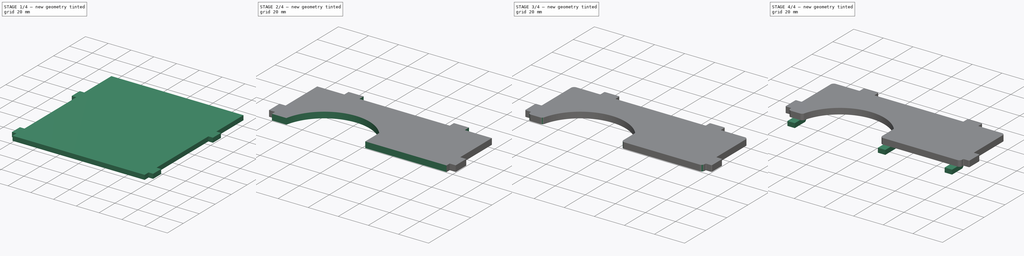
[diagram: build sequence overview — one tinted view per stage of 4, left to right]
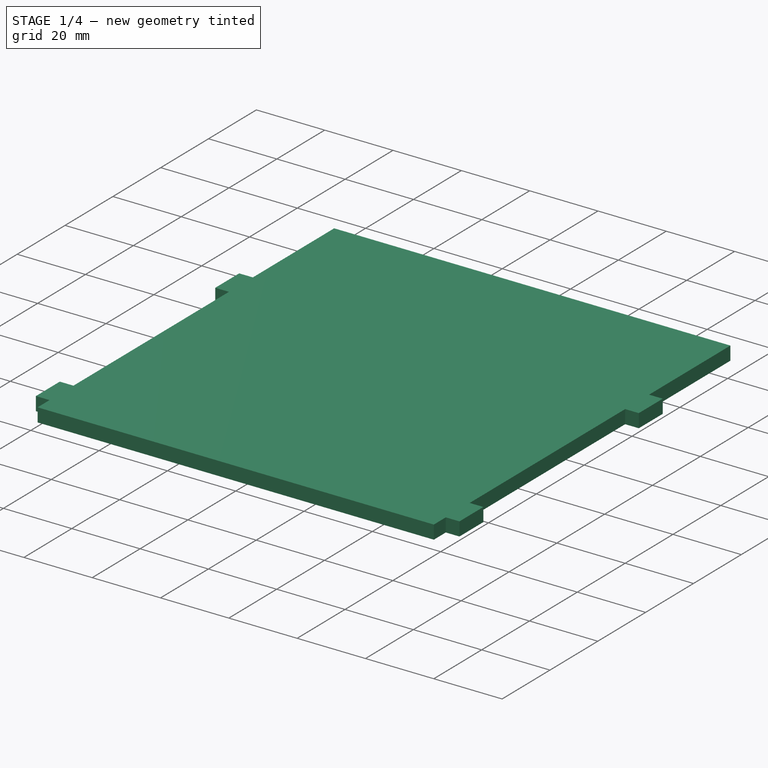
[diagram: stage 1 of 4 — iso view after this stage's code; geometry added in this stage tinted green]
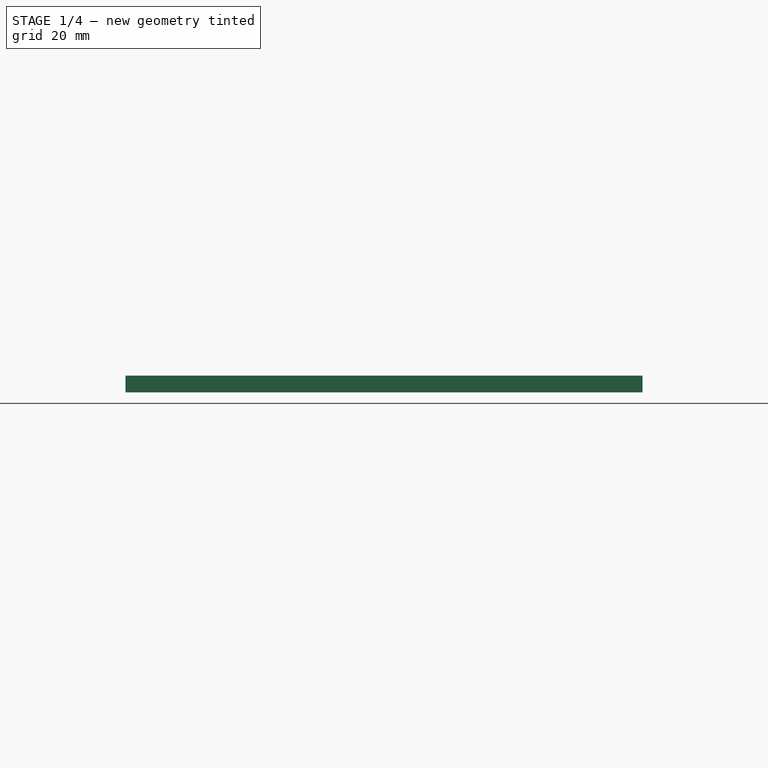
[diagram: stage 1 of 4 — front view after this stage's code; geometry added in this stage tinted green]
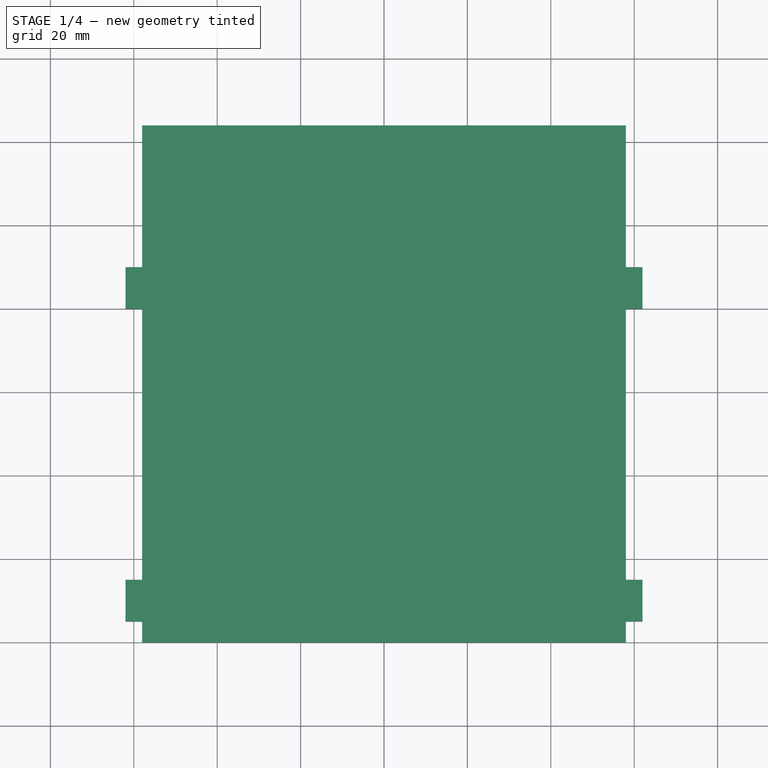
[diagram: stage 1 of 4 — top view after this stage's code; geometry added in this stage tinted green]
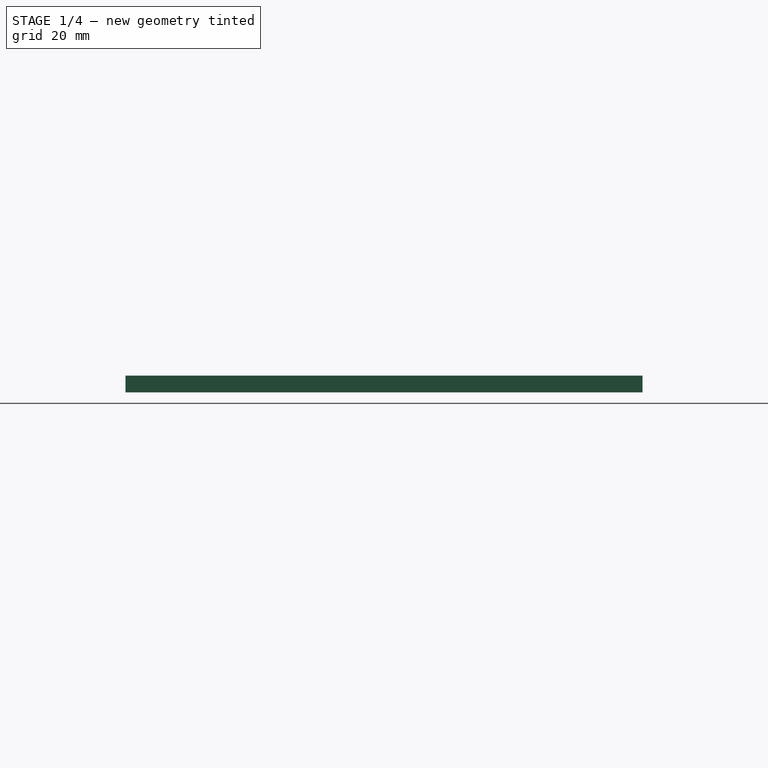
[diagram: stage 1 of 4 — right view after this stage's code; geometry added in this stage tinted green]
FCSTD DOCUMENT  (FreeCAD 0.18R16131 (Git))
Label: HBlock2_2_Alt
License: All rights reserved
LicenseURL: http://en.wikipedia.org/wiki/All_rights_reserved
objects: Sketcher::SketchObject×6, PartDesign::Pocket×4, PartDesign::Plane×3, PartDesign::Fillet×3, PartDesign::Pad×2, PartDesign::Chamfer×1, PartDesign::Body×1, App::Part×1
note: 26 computed .brp shape members not serialized (recipe doc carries the construction recipe); baked Part::Feature solids carry a one-line shape summary decoded from their .brp

FEATURE [Sketcher::SketchObject] Sketch
  MapMode = 5
  Support = -> [XY_Plane001]
  sketch-geometry (4):
    g0: LineSegment StartX=-62 StartY=0 StartZ=0 EndX=62 EndY=0 EndZ=0
    g1: LineSegment StartX=62 StartY=0 StartZ=0 EndX=62 EndY=124 EndZ=0
    g2: LineSegment StartX=62 StartY=124 StartZ=0 EndX=-62 EndY=124 EndZ=0
    g3: LineSegment StartX=-62 StartY=124 StartZ=0 EndX=-62 EndY=0 EndZ=0
  constraints (11):
    c: Coincident(g0,g1)
    c: Coincident(g1,g2)
    c: Coincident(g2,g3)
    c: Coincident(g3,g0)
    c: Horizontal(g0)
    c: Vertical(g1)
    c: Vertical(g3)
    c: PointOnObject(g0,g-1)
    c: Symmetric(g2,g1,g-2)
    c: Distance(g2) = 124
    c: Distance(g3) = 124
FEATURE [PartDesign::Pad] Pad
  Length = 4
  Length2 = 100
  Midplane = true
  Profile = -> Sketch
  Type = 0
FEATURE [PartDesign::Plane] DatumPlane  label="NotchTop_Plane"
  AttachmentOffset = pos=(0,0,2) rot=(0,0,1;0rad)
  Length = 149.781
  MapMode = 5
  Placement = pos=(0,0,2) rot=(0,0,1;0rad)
  ResizeMode = 0
  Support = -> [XY_Plane001]
  Width = 159.781
FEATURE [PartDesign::Plane] DatumPlane001  label="NotchBottom_Plane"
  AttachmentOffset = pos=(0,0,-2) rot=(0,0,1;0rad)
  Length = 149.781
  MapMode = 5
  Placement = pos=(0,0,-2) rot=(0,0,1;0rad)
  ResizeMode = 0
  Support = -> [XY_Plane001]
  Width = 159.781
FEATURE [Sketcher::SketchObject] Sketch004
  MapMode = 5
  Support = -> [XY_Plane001]
  sketch-geometry (24):
    g0: LineSegment StartX=-58 StartY=5 StartZ=0 EndX=-62 EndY=5 EndZ=0
    g1: LineSegment StartX=-62 StartY=5 StartZ=0 EndX=-62 EndY=15 EndZ=0
    g2: LineSegment StartX=-62 StartY=15 StartZ=0 EndX=-58 EndY=15 EndZ=0
    g3: LineSegment StartX=-58 StartY=15 StartZ=0 EndX=-58 EndY=80 EndZ=0
    g4: LineSegment StartX=-58 StartY=80 StartZ=0 EndX=-62 EndY=80 EndZ=0
    g5: LineSegment StartX=-62 StartY=80 StartZ=0 EndX=-62 EndY=90 EndZ=0
    g6: LineSegment StartX=-62 StartY=90 StartZ=0 EndX=-58 EndY=90 EndZ=0
    g7: LineSegment StartX=-58 StartY=90 StartZ=0 EndX=-58 EndY=124 EndZ=0
    g8: LineSegment StartX=-58 StartY=124 StartZ=0 EndX=-88 EndY=124 EndZ=0
    g9: LineSegment StartX=-88 StartY=124 StartZ=0 EndX=-88 EndY=0 EndZ=0
    g10: LineSegment StartX=-88 StartY=0 StartZ=0 EndX=-58 EndY=0 EndZ=0
    g11: LineSegment StartX=-58 StartY=5 StartZ=0 EndX=-58 EndY=0 EndZ=0
    g12: LineSegment StartX=58 StartY=5 StartZ=0 EndX=62 EndY=5 EndZ=0
    g13: LineSegment StartX=62 StartY=5 StartZ=0 EndX=62 EndY=15 EndZ=0
    g14: LineSegment StartX=62 StartY=15 StartZ=0 EndX=58 EndY=15 EndZ=0
    g15: LineSegment StartX=58 StartY=15 StartZ=0 EndX=58 EndY=80 EndZ=0
    g16: LineSegment StartX=58 StartY=80 StartZ=0 EndX=62 EndY=80 EndZ=0
    g17: LineSegment StartX=62 StartY=80 StartZ=0 EndX=62 EndY=90 EndZ=0
    g18: LineSegment StartX=62 StartY=90 StartZ=0 EndX=58 EndY=90 EndZ=0
    g19: LineSegment StartX=58 StartY=90 StartZ=0 EndX=58 EndY=124 EndZ=0
    g20: LineSegment StartX=58 StartY=124 StartZ=0 EndX=88 EndY=124 EndZ=0
    g21: LineSegment StartX=88 StartY=124 StartZ=0 EndX=88 EndY=0 EndZ=0
    g22: LineSegment StartX=88 StartY=0 StartZ=0 EndX=58 EndY=0 EndZ=0
    g23: LineSegment StartX=58 StartY=5 StartZ=0 EndX=58 EndY=0 EndZ=0
  constraints (71):
    c: Coincident(g1,g0)
    c: Vertical(g1)
    c: Coincident(g2,g1)
    c: Horizontal(g2)
    c: Coincident(g3,g2)
    c: Vertical(g3)
    c: Coincident(g4,g3)
    c: Coincident(g5,g4)
    c: Vertical(g5)
    c: Coincident(g6,g5)
    c: Horizontal(g6)
    c: Coincident(g7,g6)
    c: Vertical(g7)
    c: Coincident(g8,g7)
    c: Horizontal(g8)
    c: Coincident(g9,g8)
    c: PointOnObject(g9,g-1)
    c: Vertical(g9)
    c: Coincident(g10,g9)
    c: Horizontal(g10)
    c: Horizontal(g0)
    c: Coincident(g11,g0)
    c: Coincident(g11,g10)
    c: Vertical(g11)
    c: Horizontal(g4)
    c: Equal(g0,g2)
    c: Equal(g2,g4)
    c: Equal(g4,g6)
    c: Equal(g5,g1)
    c: Distance(g6) = 4
    c: Distance(g5) = 10
    c: Distance(g11) = 5
    c: Distance(g7) = 34
    c: Distance(g8) = 30
    c: Distance(g9) = 124
    c: Coincident(g13,g12)
    c: Vertical(g13)
    c: Coincident(g14,g13)
    c: Horizontal(g14)
    c: Coincident(g15,g14)
    c: Vertical(g15)
    c: Coincident(g16,g15)
    c: Coincident(g17,g16)
    c: Vertical(g17)
    c: Coincident(g18,g17)
    c: Horizontal(g18)
    c: Coincident(g19,g18)
    c: Vertical(g19)
    c: Coincident(g20,g19)
    c: Horizontal(g20)
    c: Coincident(g21,g20)
    c: Vertical(g21)
    c: Coincident(g22,g21)
    c: Horizontal(g22)
    c: Horizontal(g12)
    c: Coincident(g23,g12)
    c: Coincident(g23,g22)
    c: Vertical(g23)
    c: Horizontal(g16)
    c: Equal(g12,g14)
    c: Equal(g14,g16)
    c: Equal(g16,g18)
    c: Equal(g17,g13)
    c: Distance(g18) = 4
    c: Distance(g17) = 10
    c: Distance(g23) = 5
    c: Distance(g19) = 34
    c: Distance(g20) = 30
    c: Distance(g21) = 124
    c: Symmetric(g22,g10,g-2)
    c: Distance(g10,g22) = 116
FEATURE [Sketcher::SketchObject] Sketch005
  MapMode = 5
  Support = -> [XY_Plane001]
  sketch-geometry (12):
    g0: LineSegment StartX=-60 StartY=120 StartZ=0 EndX=-40 EndY=120 EndZ=0
    g1: LineSegment StartX=-40 StartY=120 StartZ=0 EndX=-40 EndY=124 EndZ=0
    g2: LineSegment StartX=-40 StartY=124 StartZ=0 EndX=-30 EndY=124 EndZ=0
    g3: LineSegment StartX=-30 StartY=124 StartZ=0 EndX=-30 EndY=120 EndZ=0
    g4: LineSegment StartX=-30 StartY=120 StartZ=0 EndX=30 EndY=120 EndZ=0
    g5: LineSegment StartX=30 StartY=120 StartZ=0 EndX=30 EndY=124 EndZ=0
    g6: LineSegment StartX=30 StartY=124 StartZ=0 EndX=40 EndY=124 EndZ=0
    g7: LineSegment StartX=40 StartY=124 StartZ=0 EndX=40 EndY=120 EndZ=0
    g8: LineSegment StartX=40 StartY=120 StartZ=0 EndX=60 EndY=120 EndZ=0
    g9: LineSegment StartX=60 StartY=120 StartZ=0 EndX=60 EndY=130 EndZ=0
    g10: LineSegment StartX=60 StartY=130 StartZ=0 EndX=-60 EndY=130 EndZ=0
    g11: LineSegment StartX=-60 StartY=130 StartZ=0 EndX=-60 EndY=120 EndZ=0
  constraints (34):
    c: Horizontal(g0)
    c: Coincident(g1,g0)
    c: Vertical(g1)
    c: Coincident(g2,g1)
    c: Horizontal(g2)
    c: Coincident(g3,g2)
    c: Vertical(g3)
    c: Coincident(g4,g3)
    c: Coincident(g5,g4)
    c: Coincident(g6,g5)
    c: Horizontal(g6)
    c: Coincident(g7,g6)
    c: Vertical(g7)
    c: Coincident(g8,g7)
    c: Horizontal(g8)
    c: Coincident(g9,g8)
    c: Vertical(g9)
    c: Coincident(g10,g9)
    c: Coincident(g11,g10)
    c: Coincident(g11,g0)
    c: Vertical(g5)
    c: Vertical(g11)
    c: Equal(g1,g3)
    c: Equal(g3,g5)
    c: Equal(g5,g7)
    c: Equal(g2,g6)
    c: Distance(g11) = 10
    c: Distance(g1) = 4
    c: Distance(g2) = 10
    c: Symmetric(g3,g4,g-2)
    c: Distance(g4,g3) = 60
    c: Symmetric(g10,g9,g-2)
    c: Distance(g10) = 120
    c: DistanceY(g-1,g0) = 120
FEATURE [PartDesign::Pocket] Pocket
  BaseFeature = -> Pad
  Length = 5
  Length2 = 100
  Midplane = true
  Profile = -> Sketch004
  Type = 1
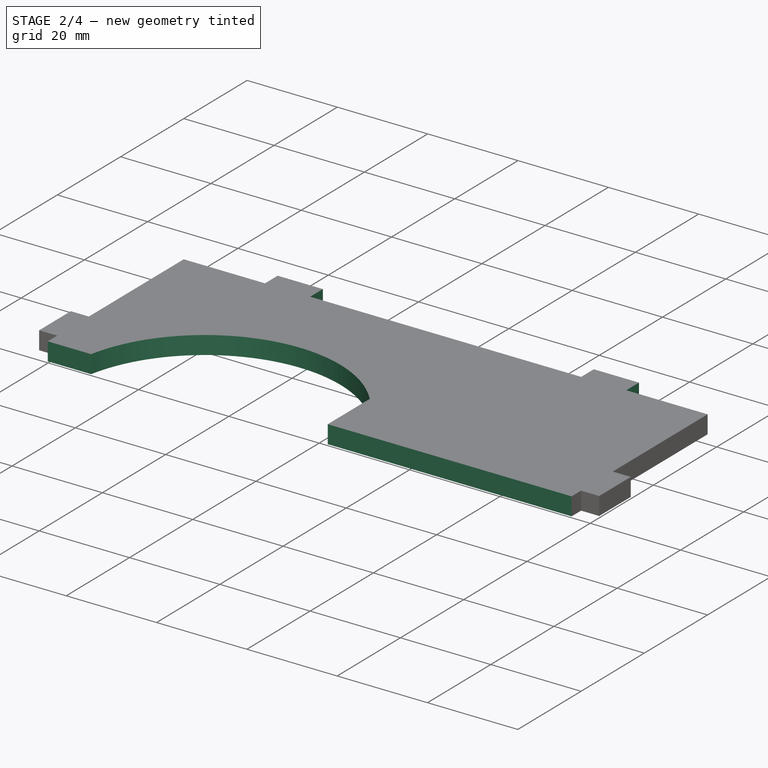
[diagram: stage 2 of 4 — iso view after this stage's code; geometry added in this stage tinted green]
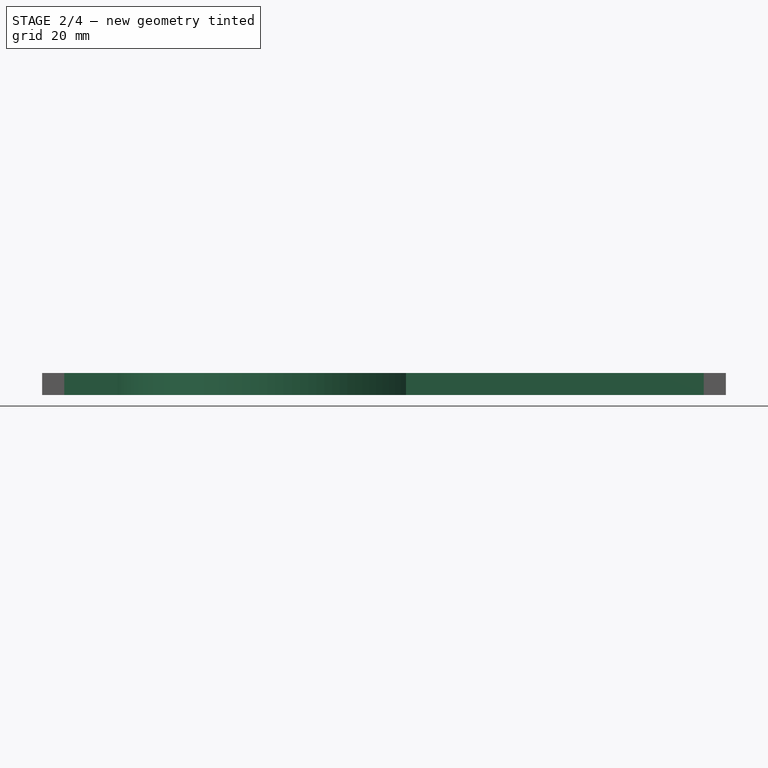
[diagram: stage 2 of 4 — front view after this stage's code; geometry added in this stage tinted green]
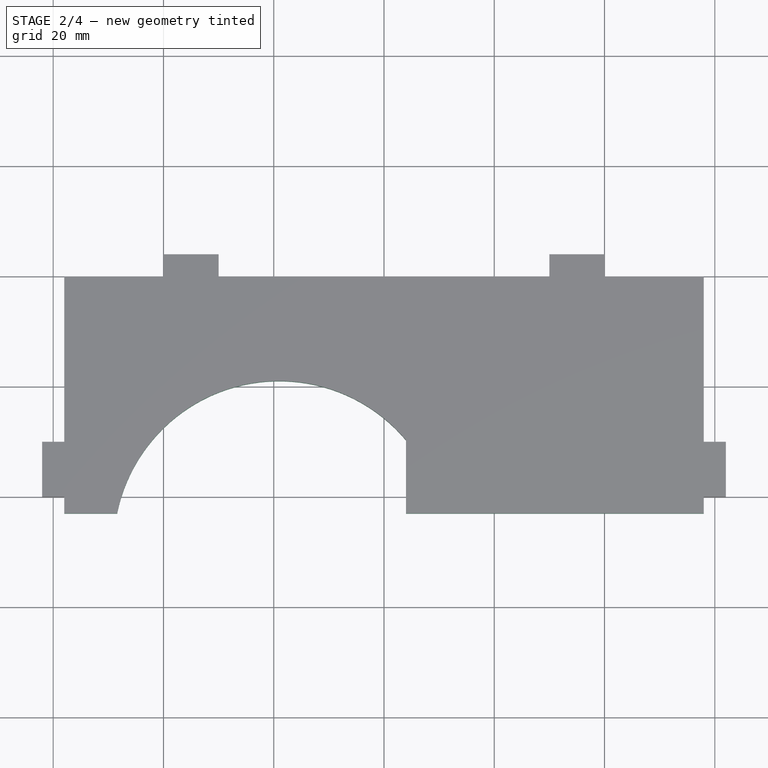
[diagram: stage 2 of 4 — top view after this stage's code; geometry added in this stage tinted green]
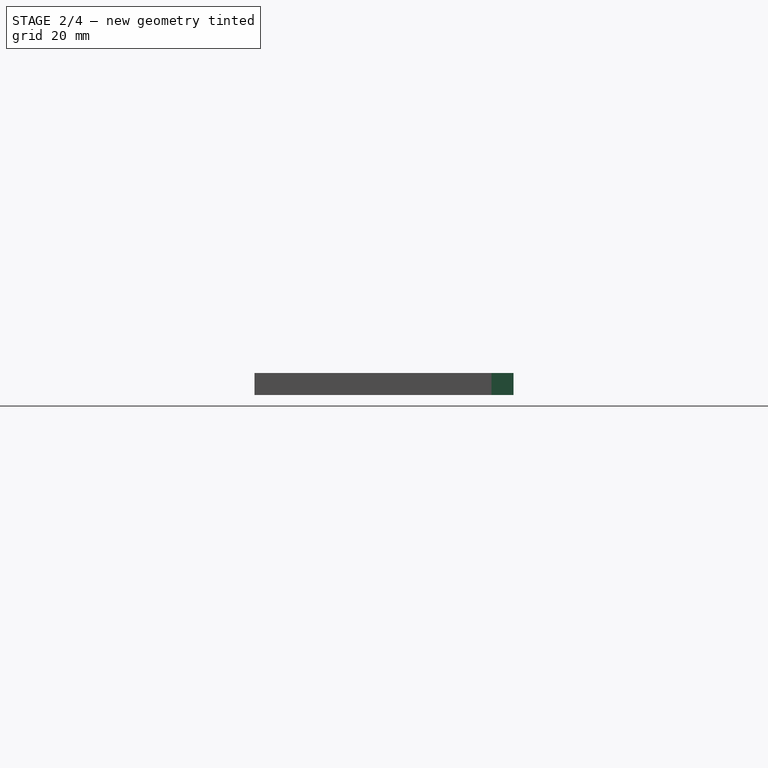
[diagram: stage 2 of 4 — right view after this stage's code; geometry added in this stage tinted green]
FEATURE [PartDesign::Pocket] Pocket001
  BaseFeature = -> Pocket
  Length = 5
  Length2 = 100
  Midplane = true
  Profile = -> Sketch005
  Type = 1
FEATURE [Sketcher::SketchObject] Sketch006
  MapMode = 5
  Support = -> [XY_Plane001]
  sketch-geometry (4):
    g0: LineSegment StartX=-75 StartY=77 StartZ=0 EndX=75 EndY=77 EndZ=0
    g1: LineSegment StartX=75 StartY=77 StartZ=0 EndX=75 EndY=0 EndZ=0
    g2: LineSegment StartX=75 StartY=0 StartZ=0 EndX=-75 EndY=0 EndZ=0
    g3: LineSegment StartX=-75 StartY=0 StartZ=0 EndX=-75 EndY=77 EndZ=0
  constraints (11):
    c: Coincident(g0,g1)
    c: Coincident(g1,g2)
    c: Coincident(g2,g3)
    c: Coincident(g3,g0)
    c: Horizontal(g2)
    c: Vertical(g1)
    c: Vertical(g3)
    c: PointOnObject(g1,g-1)
    c: Symmetric(g0,g0,g-2)
    c: Distance(g2) = 150
    c: Distance(g1) = 77
FEATURE [PartDesign::Pocket] Pocket002
  BaseFeature = -> Pocket001
  Length = 5
  Length2 = 100
  Midplane = true
  Profile = -> Sketch006
  Type = 1
FEATURE [Sketcher::SketchObject] Sketch007
  MapMode = 5
  Support = -> [XY_Plane001]
  sketch-geometry (2):
    g0: ArcOfCircle CenterX=-19 CenterY=71 CenterZ=0 NormalX=0 NormalY=0 NormalZ=1 AngleXU=0 Radius=30 StartAngle=0.697163 EndAngle=5.58602
    g1: LineSegment StartX=4 StartY=90.2614 StartZ=0 EndX=4 EndY=51.7386 EndZ=0
  constraints (7):
    c: Coincident(g1,g0)
    c: Coincident(g1,g0)
    c: Vertical(g1)
    c: DistanceX(g-2,g0) = 4
    c: Radius(g0) = 30
    c: DistanceX(g-2,g0) = -19
    c: Distance(g0,g-1) = 71
FEATURE [PartDesign::Pocket] Pocket003
  BaseFeature = -> Pocket002
  Length = 5
  Length2 = 100
  Midplane = true
  Profile = -> Sketch007
  Type = 1
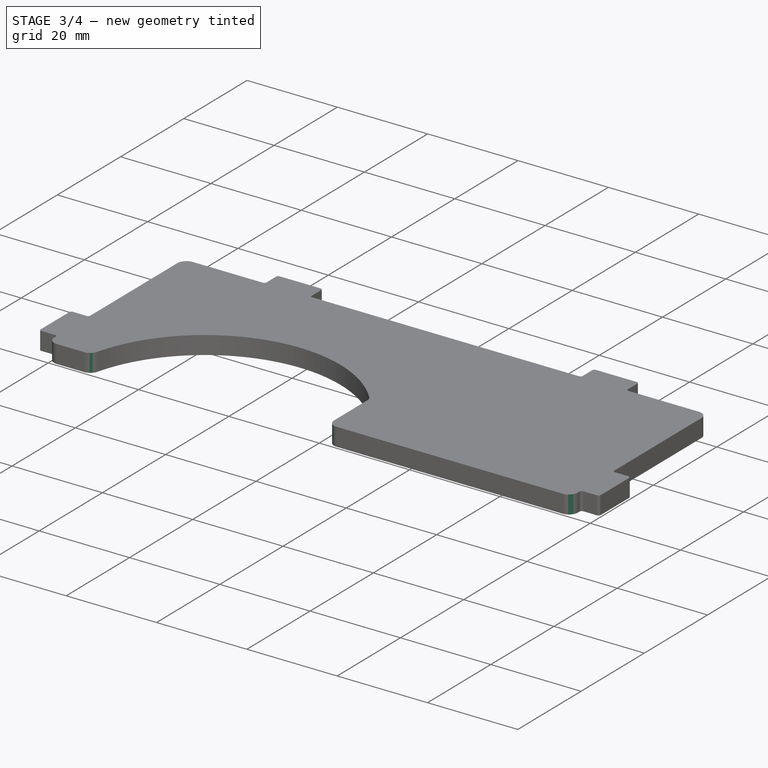
[diagram: stage 3 of 4 — iso view after this stage's code; geometry added in this stage tinted green]
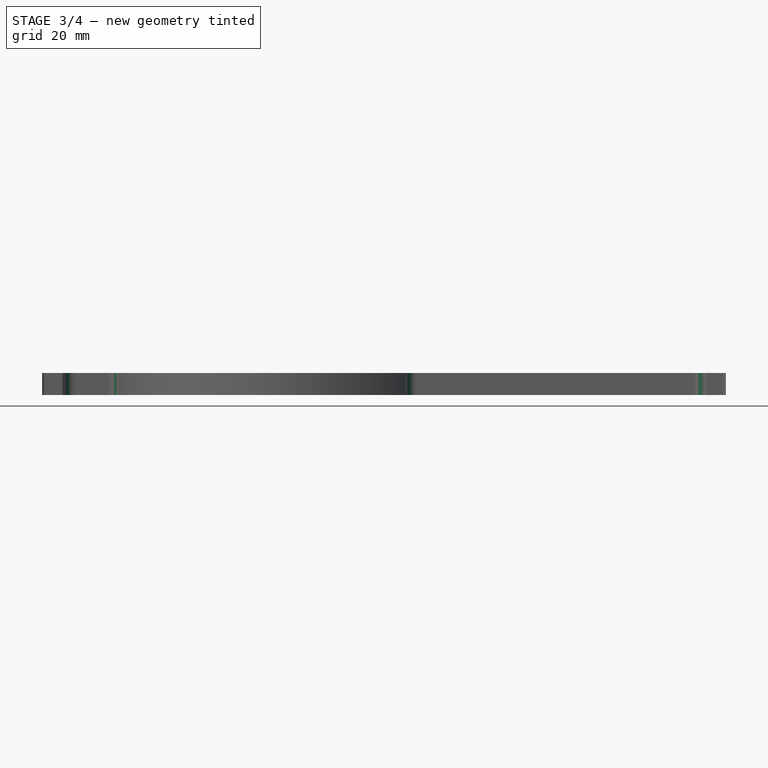
[diagram: stage 3 of 4 — front view after this stage's code; geometry added in this stage tinted green]
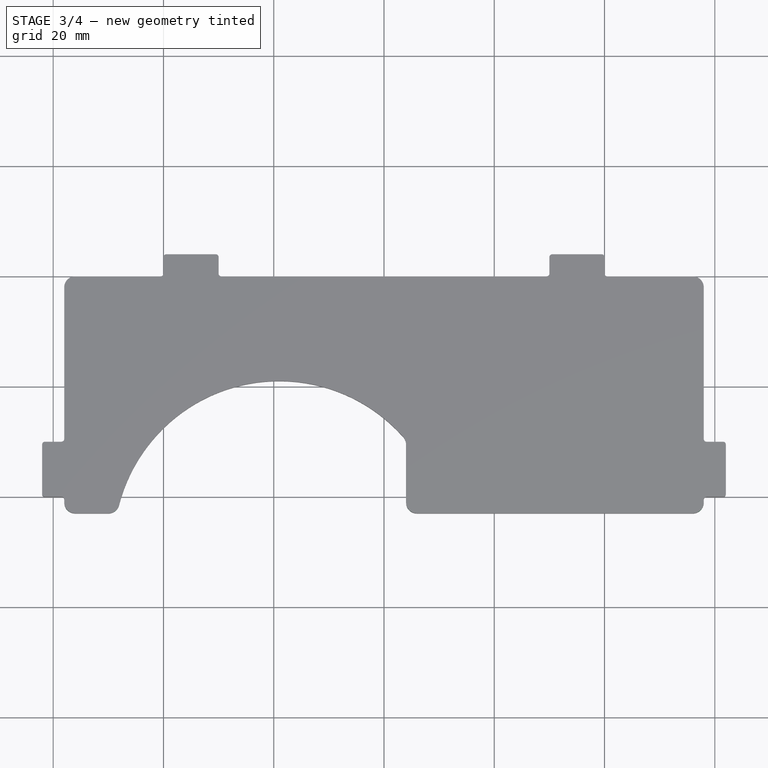
[diagram: stage 3 of 4 — top view after this stage's code; geometry added in this stage tinted green]
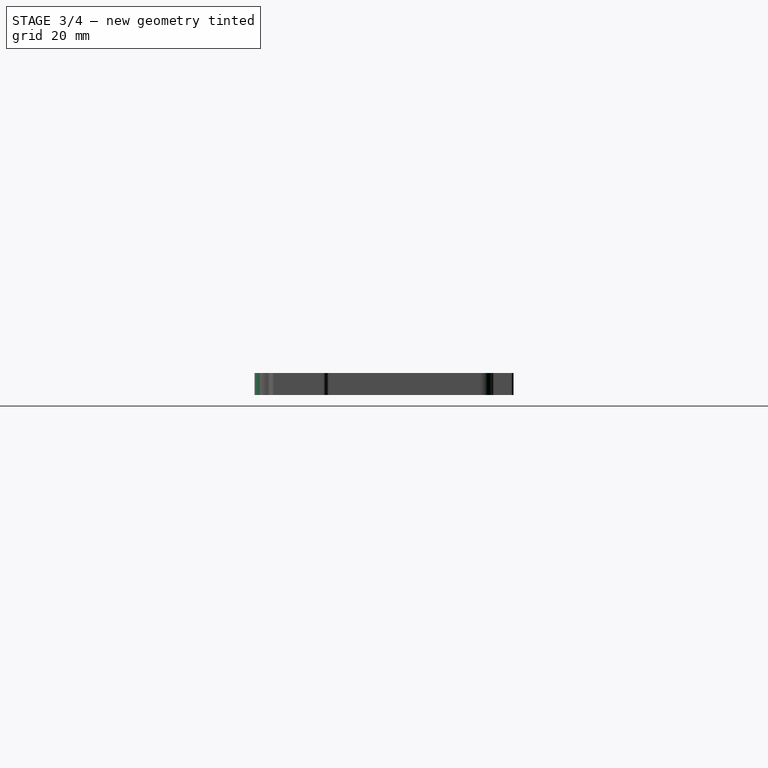
[diagram: stage 3 of 4 — right view after this stage's code; geometry added in this stage tinted green]
FEATURE [PartDesign::Fillet] Fillet
  Base = -> Pocket003 [Edge68,Edge66,Edge64,Edge62,Edge26]
  BaseFeature = -> Pocket003
  Radius = 2
FEATURE [PartDesign::Fillet] Fillet001
  Base = -> Fillet [Edge83,Edge47]
  BaseFeature = -> Fillet
  Radius = 2
FEATURE [PartDesign::Fillet] Fillet002
  Base = -> Fillet001 [Edge45,Edge40,Edge37,Edge33,Edge38,Edge43,Edge47,Edge51,Edge55,Edge59,Edge63,Edge67,Edge79,Edge83,Edge87,Edge89]
  BaseFeature = -> Fillet001
  Radius = 0.5
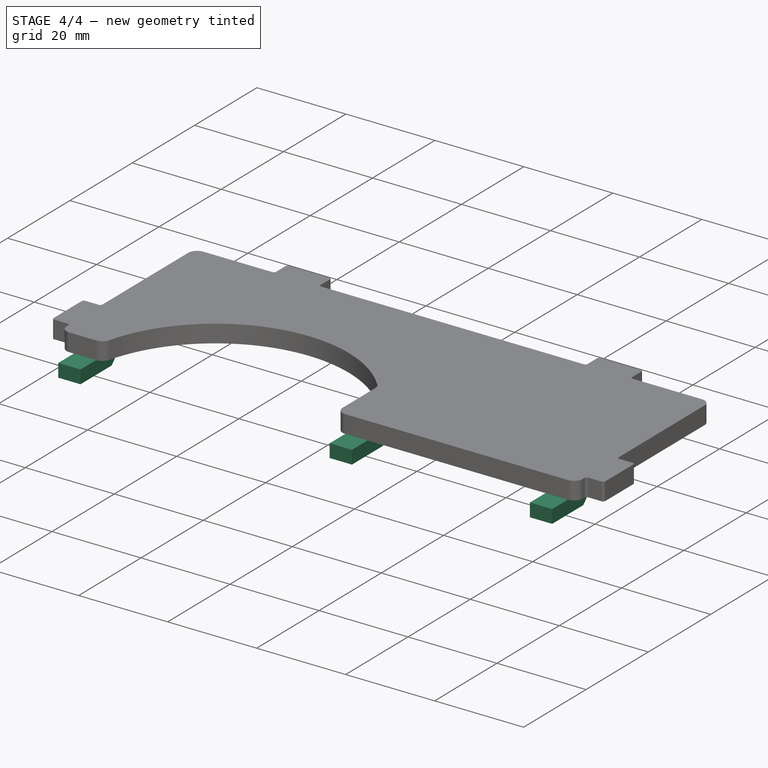
[diagram: stage 4 of 4 — iso view after this stage's code; geometry added in this stage tinted green]
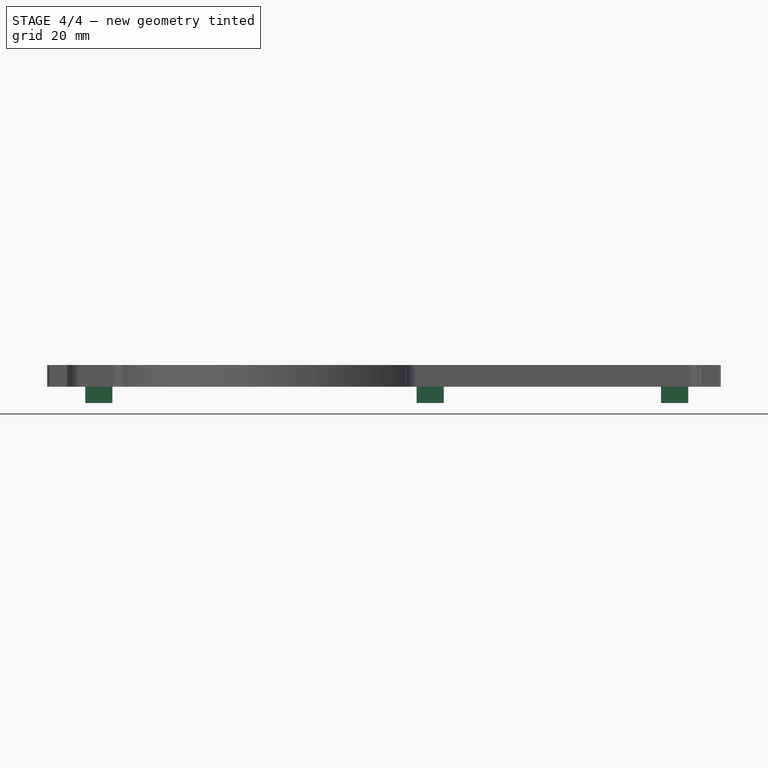
[diagram: stage 4 of 4 — front view after this stage's code; geometry added in this stage tinted green]
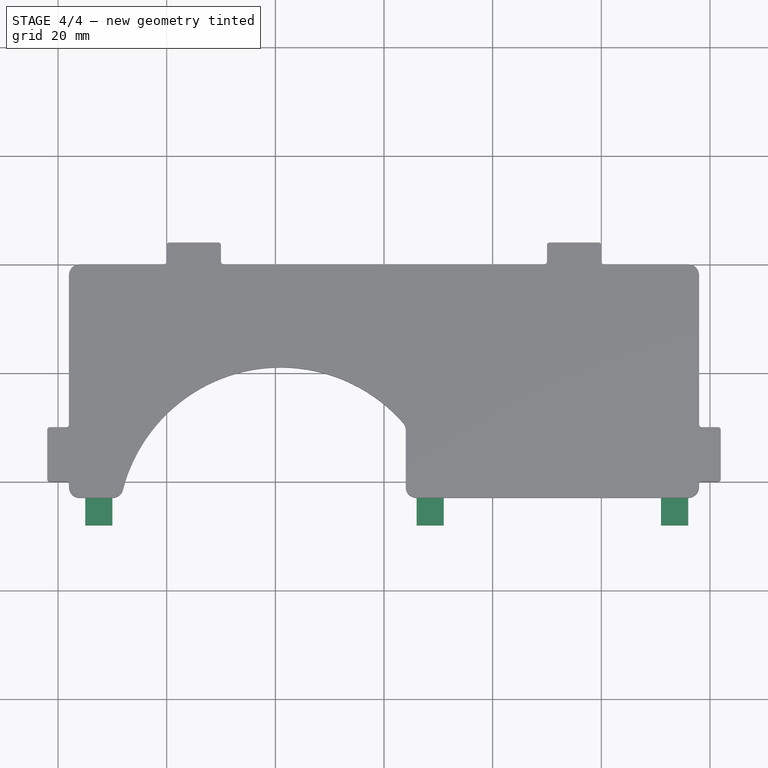
[diagram: stage 4 of 4 — top view after this stage's code; geometry added in this stage tinted green]
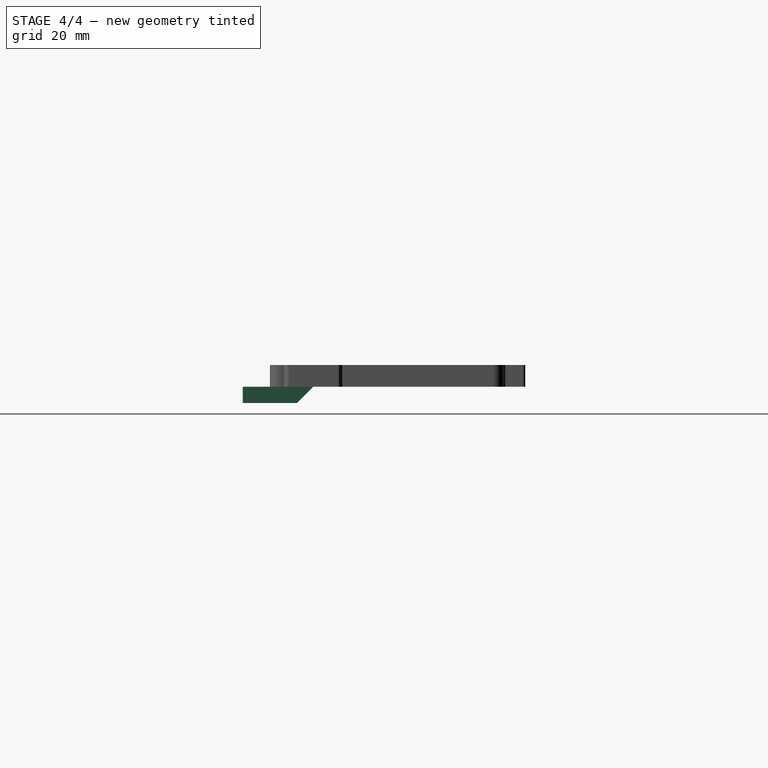
[diagram: stage 4 of 4 — right view after this stage's code; geometry added in this stage tinted green]
FEATURE [PartDesign::Plane] DatumPlane002
  AttachmentOffset = pos=(0,0,-2) rot=(0,0,1;0rad)
  Length = 149.781
  MapMode = 5
  Placement = pos=(0,0,-2) rot=(0,0,1;0rad)
  ResizeMode = 0
  Support = -> [XY_Plane001]
  Width = 159.781
FEATURE [Sketcher::SketchObject] Sketch008
  MapMode = 5
  Placement = pos=(0,0,-2) rot=(0,0,1;0rad)
  Support = -> [DatumPlane002]
  sketch-geometry (14):
    g0: LineSegment StartX=-55 StartY=82 StartZ=0 EndX=-50 EndY=82 EndZ=0
    g1: LineSegment StartX=-50 StartY=82 StartZ=0 EndX=-50 EndY=72 EndZ=0
    g2: LineSegment StartX=-50 StartY=72 StartZ=0 EndX=-55 EndY=72 EndZ=0
    g3: LineSegment StartX=-55 StartY=72 StartZ=0 EndX=-55 EndY=82 EndZ=0
    g4: LineSegment StartX=6 StartY=82 StartZ=0 EndX=11 EndY=82 EndZ=0
    g5: LineSegment StartX=11 StartY=82 StartZ=0 EndX=11 EndY=72 EndZ=0
    g6: LineSegment StartX=11 StartY=72 StartZ=0 EndX=6 EndY=72 EndZ=0
    g7: LineSegment StartX=6 StartY=72 StartZ=0 EndX=6 EndY=82 EndZ=0
    g8: LineSegment StartX=51 StartY=82 StartZ=0 EndX=56 EndY=82 EndZ=0
    g9: LineSegment StartX=56 StartY=82 StartZ=0 EndX=56 EndY=72 EndZ=0
    g10: LineSegment StartX=56 StartY=72 StartZ=0 EndX=51 EndY=72 EndZ=0
    g11: LineSegment StartX=51 StartY=72 StartZ=0 EndX=51 EndY=82 EndZ=0
    g12: LineSegment [constr] StartX=-50 StartY=72 StartZ=0 EndX=6 EndY=72 EndZ=0
    g13: LineSegment [constr] StartX=11 StartY=72 StartZ=0 EndX=51 EndY=72 EndZ=0
  constraints (40):
    c: Coincident(g0,g1)
    c: Coincident(g1,g2)
    c: Coincident(g2,g3)
    c: Coincident(g3,g0)
    c: Horizontal(g0)
    c: Horizontal(g2)
    c: Vertical(g1)
    c: Vertical(g3)
    c: Coincident(g4,g5)
    c: Coincident(g5,g6)
    c: Coincident(g6,g7)
    c: Coincident(g7,g4)
    c: Horizontal(g4)
    c: Horizontal(g6)
    c: Vertical(g5)
    c: Vertical(g7)
    c: Coincident(g8,g9)
    c: Coincident(g9,g10)
    c: Coincident(g10,g11)
    c: Coincident(g11,g8)
    c: Horizontal(g8)
    c: Horizontal(g10)
    c: Vertical(g9)
    c: Vertical(g11)
    c: Equal(g11,g7)
    c: Equal(g7,g3)
    c: Equal(g2,g6)
    c: Equal(g6,g10)
    c: Coincident(g12,g1)
    c: Coincident(g12,g6)
    c: Coincident(g13,g5)
    c: Coincident(g13,g10)
    c: Horizontal(g13)
    c: Horizontal(g12)
    c: Distance(g2) = 5
    c: Distance(g1) = 10
    c: Distance(g12) = 56
    c: Distance(g13) = 40
    c: DistanceY(g-1,g2) = 72
    c: DistanceX(g-2,g2) = -55
FEATURE [PartDesign::Pad] Pad001
  BaseFeature = -> Fillet002
  Length = 3
  Length2 = 100
  Profile = -> Sketch008
  Reversed = true
  Type = 0
FEATURE [PartDesign::Chamfer] Chamfer
  Base = -> Pad001 [Edge45,Edge36,Edge32]
  BaseFeature = -> Pad001
  Size = 2.99
FEATURE [PartDesign::Body] Body  label="BlockBody"
  Group = -> [Sketch,Pad,DatumPlane,DatumPlane001,Sketch004,Sketch005,Pocket,Pocket001,Sketch006,Pocket002,Sketch007,Pocket003,Fillet,Fillet001,Fillet002,Sketch008,DatumPlane002,Pad001,Chamfer]
  Origin = -> Origin001
  Tip = -> Chamfer
FEATURE [App::Part] Part  label="BlockPart"
  Group = -> [Body]
  Origin = -> Origin
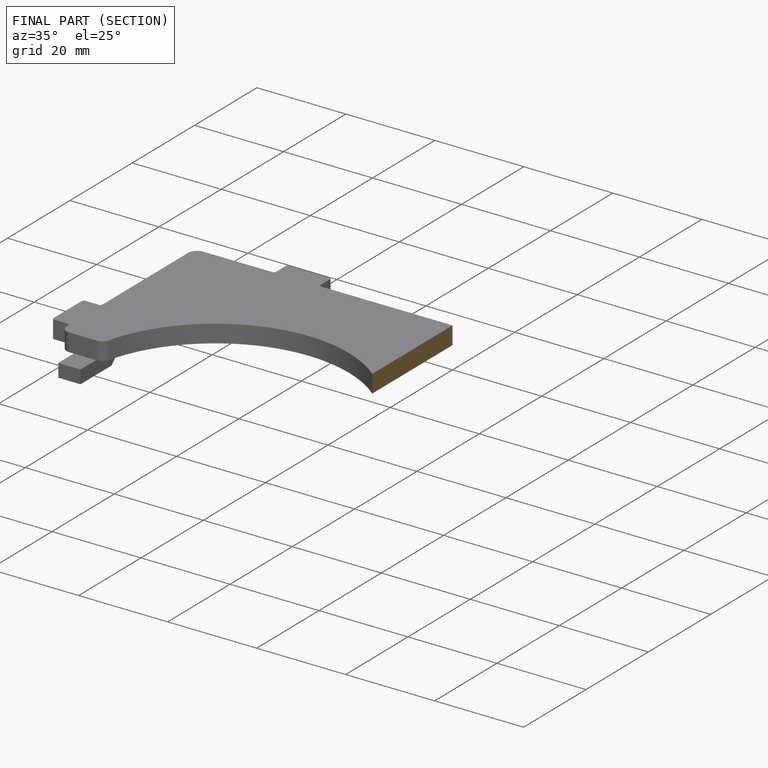
[diagram: finished part — half-section view (interior)]
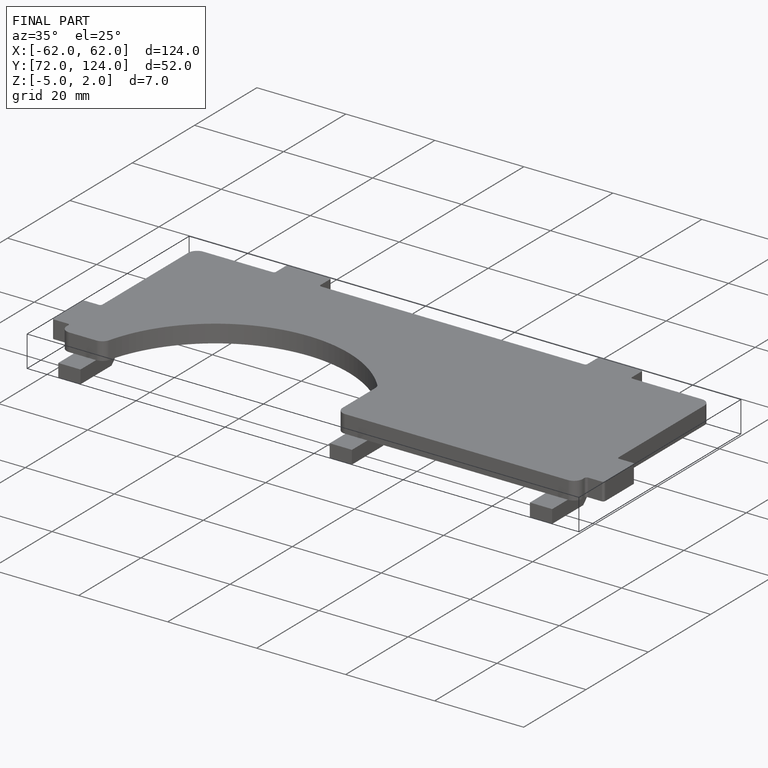
[diagram: finished part — iso view with bounding-box wireframe]
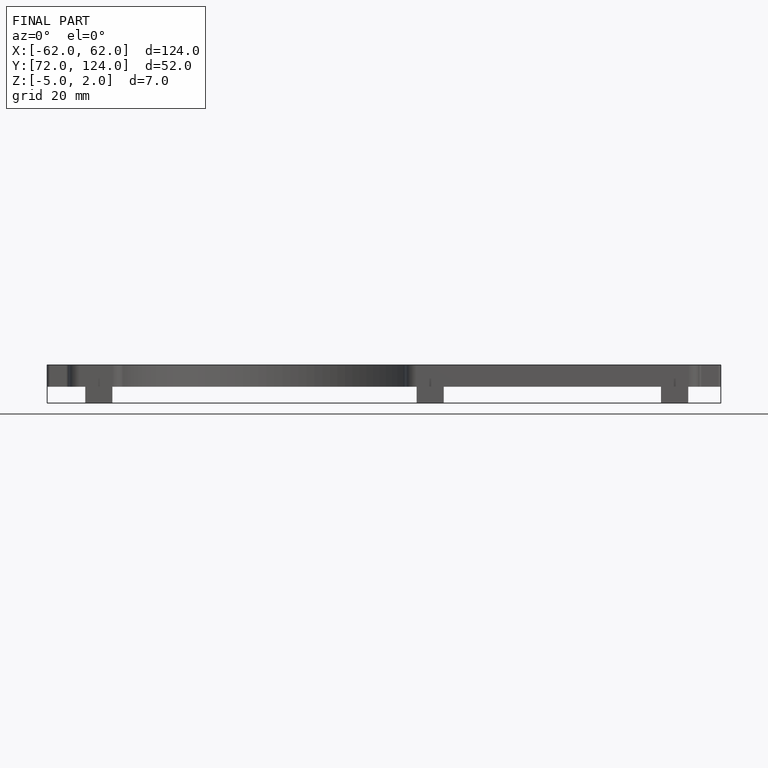
[diagram: finished part — front view with bounding-box wireframe]
